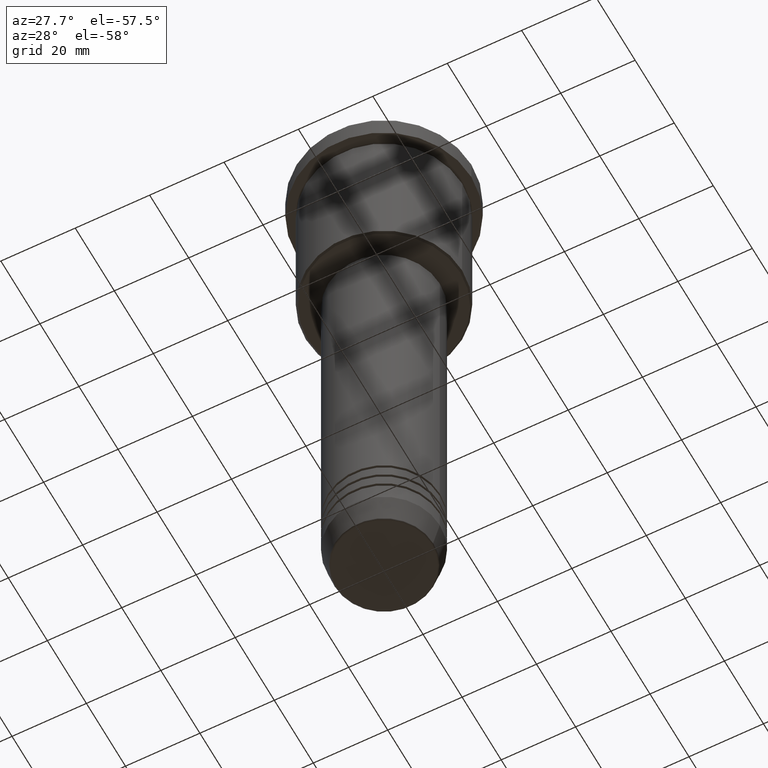
[diagram: clean part render]
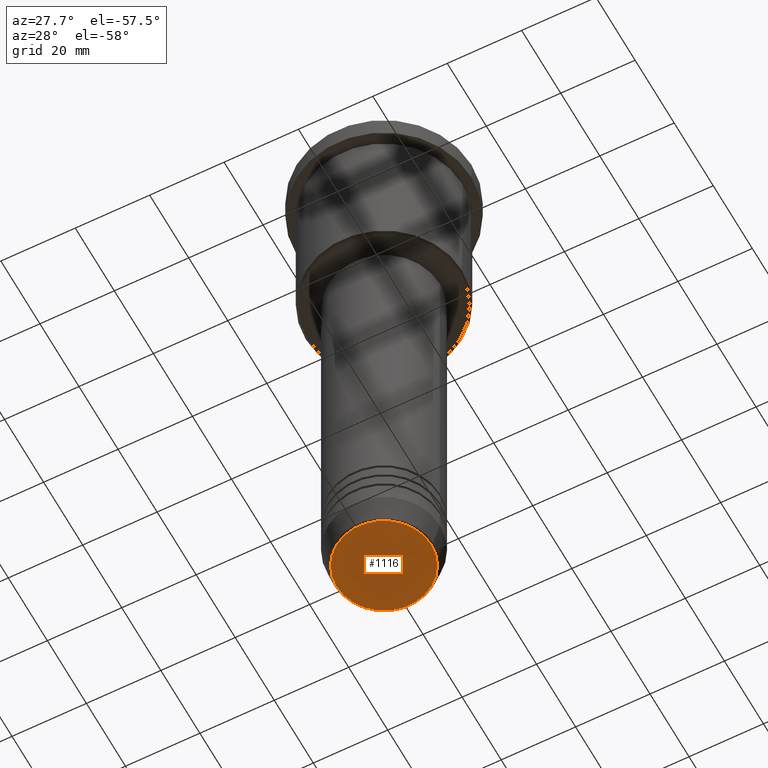
[diagram: same view with one face highlighted and labeled with its STEP entity id]
A machine part, auxiliary view. The second image highlights one B-rep face of the part: STEP entity #1116.
In plain terms, the highlighted planar face has unit normal (0, -0, 1).
Its self-contained STEP definition (entity closure, byte-faithful):
#5 = EDGE_LOOP ( 'NONE', ( #412, #646 ) ) ;
#11 = AXIS2_PLACEMENT_3D ( 'NONE', #359, #1086, #344 ) ;
#23 = EDGE_CURVE ( 'NONE', #822, #1008, #401, .T. ) ;
#142 = FACE_OUTER_BOUND ( 'NONE', #5, .T. ) ;
#185 = AXIS2_PLACEMENT_3D ( 'NONE', #1072, #697, #604 ) ;
#232 = EDGE_CURVE ( 'NONE', #1008, #822, #566, .T. ) ;
#249 = PLANE ( 'NONE',  #816 ) ;
#344 = DIRECTION ( 'NONE',  ( 1.000000000000000000, 0.000000000000000000, 0.000000000000000000 ) ) ;
#359 = CARTESIAN_POINT ( 'NONE',  ( 0.000000000000000000, 0.000000000000000000, -161.0000000000000284 ) ) ;
#401 = CIRCLE ( 'NONE', #185, 12.74069215899265828 ) ;
#412 = ORIENTED_EDGE ( 'NONE', *, *, #232, .T. ) ;
#505 = CARTESIAN_POINT ( 'NONE',  ( 12.74069215899265828, 0.000000000000000000, -161.0000000000000284 ) ) ;
#566 = CIRCLE ( 'NONE', #11, 12.74069215899265828 ) ;
#604 = DIRECTION ( 'NONE',  ( 1.000000000000000000, 0.000000000000000000, 0.000000000000000000 ) ) ;
#622 = DIRECTION ( 'NONE',  ( 1.000000000000000000, 0.000000000000000000, 0.000000000000000000 ) ) ;
#646 = ORIENTED_EDGE ( 'NONE', *, *, #23, .T. ) ;
#681 = CARTESIAN_POINT ( 'NONE',  ( -12.74069215899265828, 1.589857736427681035E-15, -161.0000000000000284 ) ) ;
#697 = DIRECTION ( 'NONE',  ( 0.000000000000000000, 0.000000000000000000, -1.000000000000000000 ) ) ;
#715 = DIRECTION ( 'NONE',  ( 0.000000000000000000, -0.000000000000000000, 1.000000000000000000 ) ) ;
#816 = AXIS2_PLACEMENT_3D ( 'NONE', #1060, #715, #622 ) ;
#822 = VERTEX_POINT ( 'NONE', #681 ) ;
#1008 = VERTEX_POINT ( 'NONE', #505 ) ;
#1060 = CARTESIAN_POINT ( 'NONE',  ( 0.000000000000000000, 0.000000000000000000, -161.0000000000000284 ) ) ;
#1072 = CARTESIAN_POINT ( 'NONE',  ( 0.000000000000000000, 0.000000000000000000, -161.0000000000000284 ) ) ;
#1086 = DIRECTION ( 'NONE',  ( 0.000000000000000000, 0.000000000000000000, -1.000000000000000000 ) ) ;
#1116 = ADVANCED_FACE ( 'NONE', ( #142 ), #249, .F. ) ;